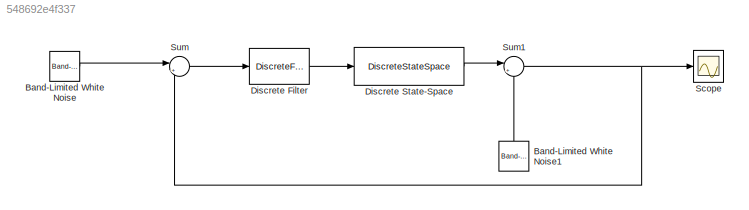
MODEL slx_548692e4f337
KIND model
BLOCK [Reference] Band-Limited White Noise  REF=simulink/Sources/Band-Limited
White Noise
  Cov = [0.1]
  Ports = [0, 1]
  SourceBlock = simulink/Sources/Band-Limited\nWhite Noise
  SourceType = Band-Limited White Noise.
  Ts = 0.2
  VectorParams1D = on
  seed = [101]
BLOCK [Reference] Band-Limited White Noise1  REF=simulink/Sources/Band-Limited
White Noise
  Cov = [0.1]
  Ports = [0, 1]
  SourceBlock = simulink/Sources/Band-Limited\nWhite Noise
  SourceType = Band-Limited White Noise.
  Ts = 0.2
  VectorParams1D = on
  seed = [101]
BLOCK [DiscreteFilter] Discrete Filter
  Denominator = [1 1]
  InputPortMap = u0
  Ports = [1, 1]
BLOCK [DiscreteStateSpace] Discrete State-Space
  A = model.A
  B = model.B
  C = model.C
  D = model.D
BLOCK [Scope] Scope
  Floating = off
  NumInputPorts = 1
  Ports = [1]
  ShowLegends = off
BLOCK [Sum] Sum
  IconShape = round
  InputSameDT = off
  Inputs = |+-
  OutDataTypeStr = Inherit: Inherit via internal rule
  Ports = [2, 1]
  SaturateOnIntegerOverflow = off
BLOCK [Sum] Sum1
  IconShape = round
  InputSameDT = off
  Inputs = |+-
  OutDataTypeStr = Inherit: Inherit via internal rule
  Ports = [2, 1]
  SaturateOnIntegerOverflow = off
LINE Band-Limited White Noise1:1 -> Sum1:2
LINE Band-Limited White Noise:1 -> Sum:1
LINE Discrete Filter:1 -> Discrete State-Space:1
LINE Discrete State-Space:1 -> Sum1:1
NET Sum1:1 -> Scope:1, Sum:2
LINE Sum:1 -> Discrete Filter:1
note: NET lines group one-source signal fan-out (src -> all destinations, sorted); 1:1 wires keep LINE
